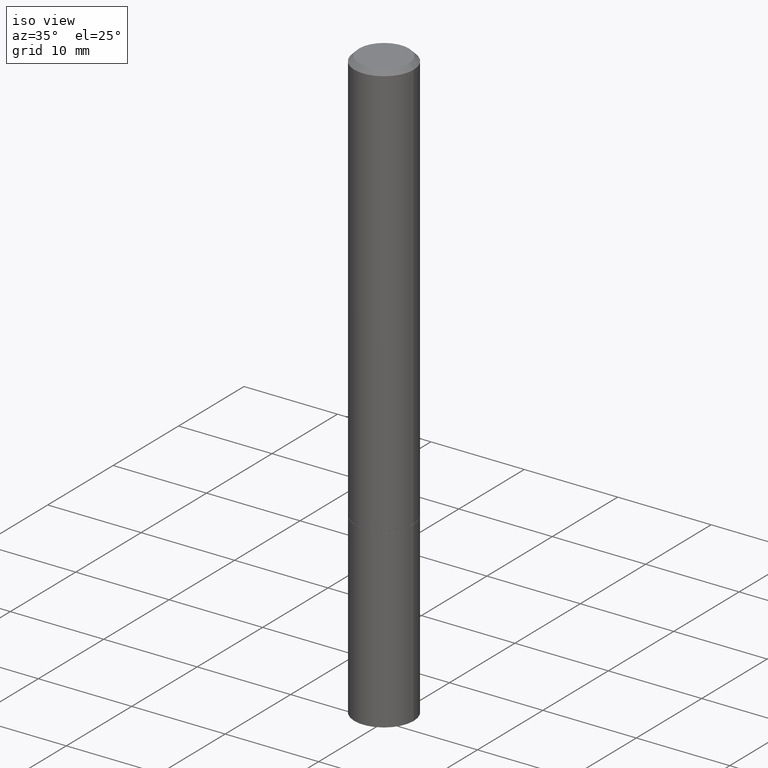
[diagram: clean part render]
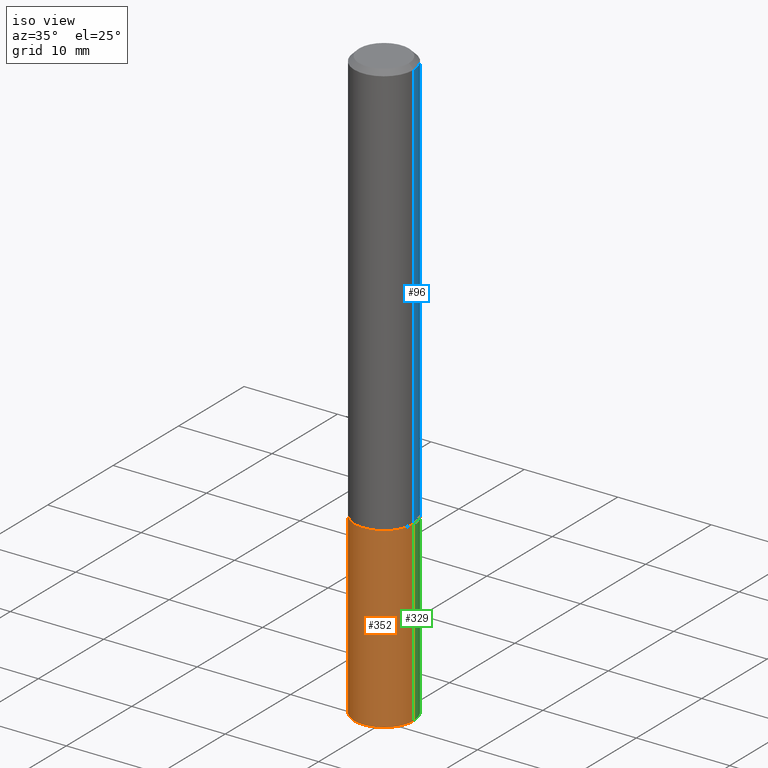
[diagram: same view with three faces highlighted in distinct colors, each labeled with its STEP entity id]
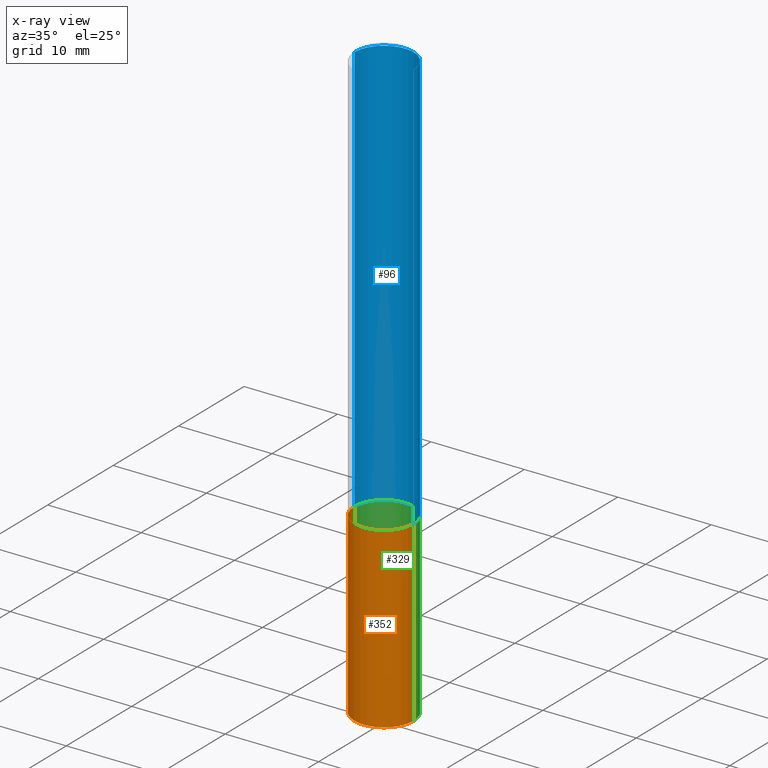
[diagram: x-ray of the same camera — body ghosted, the three highlighted faces saturated]
A machine part, iso view with three faces highlighted in distinct colors.
The next image is the same camera in x-ray (body ghosted, the three faces saturated) — at least one of them is partly hidden behind the body in this view.
Their STEP definitions:

[orange] entity #352 — the highlighted cylindrical surface (edge-blend (fillet) strip) has radius 3.175 mm, axis along (-0, 0, 1).
#11 = DIRECTION ( 'NONE',  ( 1.000000000000000000, -6.982962677686262766E-15, 0.000000000000000000 ) ) ;
#30 = VERTEX_POINT ( 'NONE', #197 ) ;
#35 = AXIS2_PLACEMENT_3D ( 'NONE', #146, #169, #11 ) ;
#44 = FACE_OUTER_BOUND ( 'NONE', #268, .T. ) ;
#61 = CARTESIAN_POINT ( 'NONE',  ( 0.1250000000000000000, -9.601573681818648281E-15, -2.500000000000000000 ) ) ;
#82 = ORIENTED_EDGE ( 'NONE', *, *, #135, .T. ) ;
#88 = CARTESIAN_POINT ( 'NONE',  ( 6.113672015462842613E-29, -8.728703347107864943E-15, -2.500000000000000000 ) ) ;
#92 = DIRECTION ( 'NONE',  ( 1.000000000000000000, -6.982962677686270655E-15, 0.000000000000000000 ) ) ;
#100 = CARTESIAN_POINT ( 'NONE',  ( -0.1250000000000000000, 8.881784197001252323E-16, -6.148668862818632227E-30 ) ) ;
#112 = CARTESIAN_POINT ( 'NONE',  ( 0.1250000000000000000, -8.728703347107833388E-16, 6.095220969744919741E-30 ) ) ;
#121 = ORIENTED_EDGE ( 'NONE', *, *, #272, .T. ) ;
#125 = LINE ( 'NONE', #112, #221 ) ;
#135 = EDGE_CURVE ( 'NONE', #137, #243, #168, .T. ) ;
#137 = VERTEX_POINT ( 'NONE', #320 ) ;
#146 = CARTESIAN_POINT ( 'NONE',  ( 4.279570410823989044E-29, -6.110092342975505460E-15, -1.750000000000000222 ) ) ;
#155 = CYLINDRICAL_SURFACE ( 'NONE', #165, 0.1250000000000000000 ) ;
#158 = CARTESIAN_POINT ( 'NONE',  ( 0.000000000000000000, 0.000000000000000000, 0.000000000000000000 ) ) ;
#165 = AXIS2_PLACEMENT_3D ( 'NONE', #158, #325, #328 ) ;
#168 = CIRCLE ( 'NONE', #278, 0.1250000000000000000 ) ;
#169 = DIRECTION ( 'NONE',  ( -2.445468806185136597E-29, 3.491481338843145583E-15, 1.000000000000000000 ) ) ;
#183 = DIRECTION ( 'NONE',  ( -2.445468806185136877E-29, 3.491481338843145188E-15, 1.000000000000000000 ) ) ;
#197 = CARTESIAN_POINT ( 'NONE',  ( -0.1250000000000000000, -6.531219425341559180E-15, -1.750000000000000222 ) ) ;
#201 = DIRECTION ( 'NONE',  ( -2.445468806185136597E-29, 3.491481338843145583E-15, 1.000000000000000000 ) ) ;
#206 = EDGE_CURVE ( 'NONE', #30, #353, #341, .T. ) ;
#217 = ORIENTED_EDGE ( 'NONE', *, *, #331, .F. ) ;
#221 = VECTOR ( 'NONE', #338, 39.37007874015748143 ) ;
#227 = VECTOR ( 'NONE', #183, 39.37007874015748143 ) ;
#243 = VERTEX_POINT ( 'NONE', #61 ) ;
#268 = EDGE_LOOP ( 'NONE', ( #217, #82, #121, #283 ) ) ;
#272 = EDGE_CURVE ( 'NONE', #243, #353, #125, .T. ) ;
#273 = CARTESIAN_POINT ( 'NONE',  ( 0.1250000000000000000, -6.982962677686288010E-15, -1.750000000000000222 ) ) ;
#278 = AXIS2_PLACEMENT_3D ( 'NONE', #88, #201, #92 ) ;
#283 = ORIENTED_EDGE ( 'NONE', *, *, #206, .F. ) ;
#295 = LINE ( 'NONE', #100, #227 ) ;
#320 = CARTESIAN_POINT ( 'NONE',  ( -0.1250000000000000000, -6.531219425341559180E-15, -2.500000000000000000 ) ) ;
#325 = DIRECTION ( 'NONE',  ( -2.445468806185136597E-29, 3.491481338843145583E-15, 1.000000000000000000 ) ) ;
#328 = DIRECTION ( 'NONE',  ( 1.000000000000000000, -6.982962677686266711E-15, 4.876176775795935793E-29 ) ) ;
#331 = EDGE_CURVE ( 'NONE', #137, #30, #295, .T. ) ;
#338 = DIRECTION ( 'NONE',  ( -2.445468806185136877E-29, 3.491481338843145188E-15, 1.000000000000000000 ) ) ;
#341 = CIRCLE ( 'NONE', #35, 0.1250000000000000000 ) ;
#352 = ADVANCED_FACE ( 'NONE', ( #44 ), #155, .T. ) ;
#353 = VERTEX_POINT ( 'NONE', #273 ) ;

[blue] entity #96 — the highlighted cylindrical surface (edge-blend (fillet) strip) has radius 3.175 mm, axis along (-0, 0, 1).
#7 = LINE ( 'NONE', #84, #292 ) ;
#18 = DIRECTION ( 'NONE',  ( -2.445468806185136597E-29, 3.491481338843145583E-15, 1.000000000000000000 ) ) ;
#21 = CARTESIAN_POINT ( 'NONE',  ( 4.890937612370283668E-31, -6.982962677686305168E-17, -0.02000000000000004205 ) ) ;
#38 = DIRECTION ( 'NONE',  ( -2.445468806185136597E-29, 3.491481338843145583E-15, 1.000000000000000000 ) ) ;
#42 = AXIS2_PLACEMENT_3D ( 'NONE', #21, #18, #136 ) ;
#58 = DIRECTION ( 'NONE',  ( -2.445468806185136877E-29, 3.491481338843145188E-15, 1.000000000000000000 ) ) ;
#59 = EDGE_LOOP ( 'NONE', ( #313, #193, #348, #215 ) ) ;
#62 = EDGE_CURVE ( 'NONE', #359, #113, #7, .T. ) ;
#84 = CARTESIAN_POINT ( 'NONE',  ( 0.1249999999999999029, -8.728703347107826486E-16, 6.095220969744914837E-30 ) ) ;
#93 = CARTESIAN_POINT ( 'NONE',  ( 4.277124942017804562E-29, -6.106600861636661664E-15, -1.749000000000000110 ) ) ;
#96 = ADVANCED_FACE ( 'NONE', ( #171 ), #229, .T. ) ;
#98 = CARTESIAN_POINT ( 'NONE',  ( 0.1250000000000000000, -6.979471196347445792E-15, -1.749000000000000110 ) ) ;
#113 = VERTEX_POINT ( 'NONE', #230 ) ;
#120 = VERTEX_POINT ( 'NONE', #147 ) ;
#136 = DIRECTION ( 'NONE',  ( 1.000000000000000000, -6.982962677686266711E-15, 0.000000000000000000 ) ) ;
#141 = CARTESIAN_POINT ( 'NONE',  ( -0.1249999999999999029, 8.881784197001245421E-16, -6.148668862818627323E-30 ) ) ;
#147 = CARTESIAN_POINT ( 'NONE',  ( -0.1250000000000000278, -2.200036824506634488E-15, -1.749000000000000110 ) ) ;
#149 = DIRECTION ( 'NONE',  ( 1.000000000000000000, -6.982962677686270655E-15, 0.000000000000000000 ) ) ;
#162 = EDGE_CURVE ( 'NONE', #113, #242, #245, .T. ) ;
#171 = FACE_OUTER_BOUND ( 'NONE', #59, .T. ) ;
#177 = AXIS2_PLACEMENT_3D ( 'NONE', #93, #38, #149 ) ;
#181 = EDGE_CURVE ( 'NONE', #120, #242, #307, .T. ) ;
#193 = ORIENTED_EDGE ( 'NONE', *, *, #181, .T. ) ;
#215 = ORIENTED_EDGE ( 'NONE', *, *, #62, .F. ) ;
#229 = CYLINDRICAL_SURFACE ( 'NONE', #280, 0.1249999999999999029 ) ;
#230 = CARTESIAN_POINT ( 'NONE',  ( 0.1249999999999997780, -9.273918764983029686E-16, -0.02000000000000004205 ) ) ;
#231 = CARTESIAN_POINT ( 'NONE',  ( -0.1249999999999997780, 8.030407079339186601E-16, -0.02000000000000004205 ) ) ;
#233 = CARTESIAN_POINT ( 'NONE',  ( 0.000000000000000000, 0.000000000000000000, 0.000000000000000000 ) ) ;
#240 = CIRCLE ( 'NONE', #177, 0.1250000000000000000 ) ;
#242 = VERTEX_POINT ( 'NONE', #231 ) ;
#244 = VECTOR ( 'NONE', #256, 39.37007874015748143 ) ;
#245 = CIRCLE ( 'NONE', #42, 0.1249999999999997780 ) ;
#256 = DIRECTION ( 'NONE',  ( -2.445468806185136877E-29, 3.491481338843145188E-15, 1.000000000000000000 ) ) ;
#263 = EDGE_CURVE ( 'NONE', #359, #120, #240, .T. ) ;
#280 = AXIS2_PLACEMENT_3D ( 'NONE', #233, #304, #344 ) ;
#292 = VECTOR ( 'NONE', #58, 39.37007874015748143 ) ;
#304 = DIRECTION ( 'NONE',  ( -2.445468806185136597E-29, 3.491481338843145583E-15, 1.000000000000000000 ) ) ;
#307 = LINE ( 'NONE', #141, #244 ) ;
#313 = ORIENTED_EDGE ( 'NONE', *, *, #263, .T. ) ;
#344 = DIRECTION ( 'NONE',  ( 1.000000000000000000, -6.982962677686266711E-15, 4.876176775795935793E-29 ) ) ;
#348 = ORIENTED_EDGE ( 'NONE', *, *, #162, .F. ) ;
#359 = VERTEX_POINT ( 'NONE', #98 ) ;

[green] entity #329 — the highlighted cylindrical surface (edge-blend (fillet) strip) has radius 3.175 mm, axis along (-0, 0, 1).
#1 = DIRECTION ( 'NONE',  ( -2.445468806185136597E-29, 3.491481338843145583E-15, 1.000000000000000000 ) ) ;
#14 = FACE_OUTER_BOUND ( 'NONE', #258, .T. ) ;
#17 = DIRECTION ( 'NONE',  ( 1.000000000000000000, -6.982962677686266711E-15, 4.876176775795935793E-29 ) ) ;
#30 = VERTEX_POINT ( 'NONE', #197 ) ;
#40 = DIRECTION ( 'NONE',  ( -2.445468806185136597E-29, 3.491481338843145583E-15, 1.000000000000000000 ) ) ;
#60 = DIRECTION ( 'NONE',  ( -2.445468806185136597E-29, 3.491481338843145583E-15, 1.000000000000000000 ) ) ;
#61 = CARTESIAN_POINT ( 'NONE',  ( 0.1250000000000000000, -9.601573681818648281E-15, -2.500000000000000000 ) ) ;
#73 = CARTESIAN_POINT ( 'NONE',  ( 0.000000000000000000, 0.000000000000000000, 0.000000000000000000 ) ) ;
#76 = ORIENTED_EDGE ( 'NONE', *, *, #272, .F. ) ;
#100 = CARTESIAN_POINT ( 'NONE',  ( -0.1250000000000000000, 8.881784197001252323E-16, -6.148668862818632227E-30 ) ) ;
#111 = ORIENTED_EDGE ( 'NONE', *, *, #138, .T. ) ;
#112 = CARTESIAN_POINT ( 'NONE',  ( 0.1250000000000000000, -8.728703347107833388E-16, 6.095220969744919741E-30 ) ) ;
#125 = LINE ( 'NONE', #112, #221 ) ;
#137 = VERTEX_POINT ( 'NONE', #320 ) ;
#138 = EDGE_CURVE ( 'NONE', #243, #137, #154, .T. ) ;
#154 = CIRCLE ( 'NONE', #235, 0.1250000000000000000 ) ;
#159 = CIRCLE ( 'NONE', #335, 0.1250000000000000000 ) ;
#174 = CARTESIAN_POINT ( 'NONE',  ( 4.279570410823989044E-29, -6.110092342975505460E-15, -1.750000000000000222 ) ) ;
#182 = EDGE_CURVE ( 'NONE', #353, #30, #159, .T. ) ;
#183 = DIRECTION ( 'NONE',  ( -2.445468806185136877E-29, 3.491481338843145188E-15, 1.000000000000000000 ) ) ;
#196 = DIRECTION ( 'NONE',  ( 1.000000000000000000, -6.982962677686262766E-15, 0.000000000000000000 ) ) ;
#197 = CARTESIAN_POINT ( 'NONE',  ( -0.1250000000000000000, -6.531219425341559180E-15, -1.750000000000000222 ) ) ;
#210 = CYLINDRICAL_SURFACE ( 'NONE', #285, 0.1250000000000000000 ) ;
#221 = VECTOR ( 'NONE', #338, 39.37007874015748143 ) ;
#227 = VECTOR ( 'NONE', #183, 39.37007874015748143 ) ;
#235 = AXIS2_PLACEMENT_3D ( 'NONE', #346, #60, #315 ) ;
#243 = VERTEX_POINT ( 'NONE', #61 ) ;
#258 = EDGE_LOOP ( 'NONE', ( #111, #311, #337, #76 ) ) ;
#272 = EDGE_CURVE ( 'NONE', #243, #353, #125, .T. ) ;
#273 = CARTESIAN_POINT ( 'NONE',  ( 0.1250000000000000000, -6.982962677686288010E-15, -1.750000000000000222 ) ) ;
#285 = AXIS2_PLACEMENT_3D ( 'NONE', #73, #40, #17 ) ;
#295 = LINE ( 'NONE', #100, #227 ) ;
#311 = ORIENTED_EDGE ( 'NONE', *, *, #331, .T. ) ;
#315 = DIRECTION ( 'NONE',  ( 1.000000000000000000, -6.982962677686270655E-15, 0.000000000000000000 ) ) ;
#320 = CARTESIAN_POINT ( 'NONE',  ( -0.1250000000000000000, -6.531219425341559180E-15, -2.500000000000000000 ) ) ;
#329 = ADVANCED_FACE ( 'NONE', ( #14 ), #210, .T. ) ;
#331 = EDGE_CURVE ( 'NONE', #137, #30, #295, .T. ) ;
#335 = AXIS2_PLACEMENT_3D ( 'NONE', #174, #1, #196 ) ;
#337 = ORIENTED_EDGE ( 'NONE', *, *, #182, .F. ) ;
#338 = DIRECTION ( 'NONE',  ( -2.445468806185136877E-29, 3.491481338843145188E-15, 1.000000000000000000 ) ) ;
#346 = CARTESIAN_POINT ( 'NONE',  ( 6.113672015462842613E-29, -8.728703347107864943E-15, -2.500000000000000000 ) ) ;
#353 = VERTEX_POINT ( 'NONE', #273 ) ;